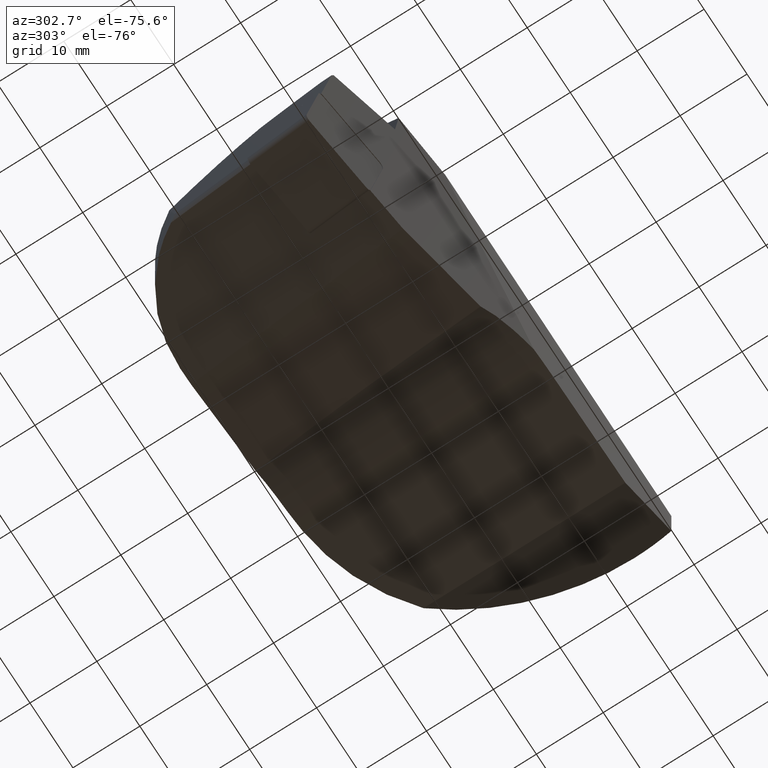
[diagram: clean part render]
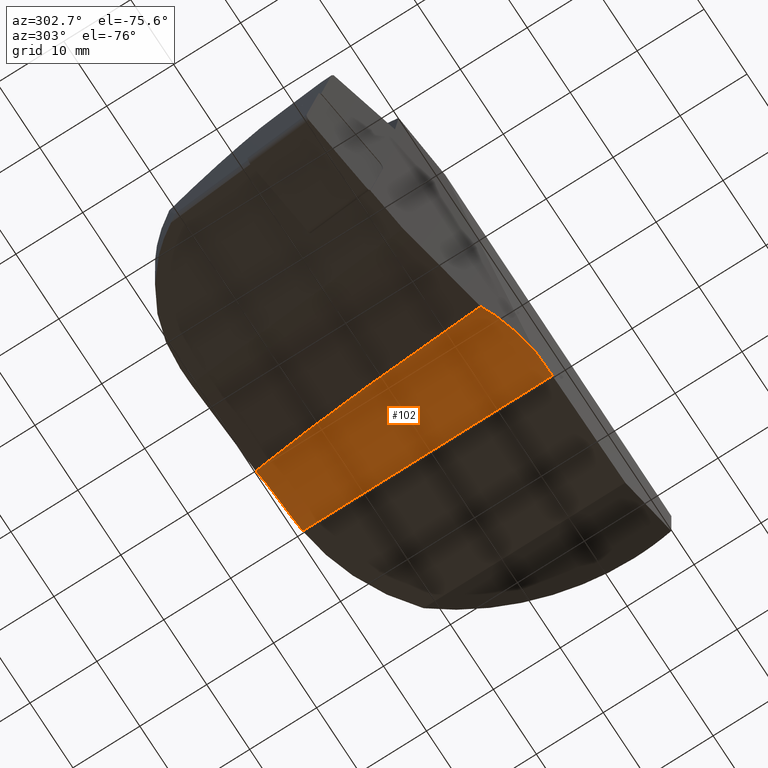
[diagram: same view with one face highlighted and labeled with its STEP entity id]
A machine part, auxiliary view. The second image highlights one B-rep face of the part: STEP entity #102.
In plain terms, the highlighted cylindrical surface (partial cylindrical patch) has radius 20 mm, axis along (-0, 1, 0).
Its self-contained STEP definition (entity closure, byte-faithful):
#102=ADVANCED_FACE('',(#162),#163,.F.);
#162=FACE_OUTER_BOUND('',#226,.T.);
#163=CYLINDRICAL_SURFACE('',#227,20.0);
#226=EDGE_LOOP('',(#468,#469,#470,#471,#472,#473));
#227=AXIS2_PLACEMENT_3D('',#474,#475,#476);
#468=ORIENTED_EDGE('',*,*,#557,.T.);
#469=ORIENTED_EDGE('',*,*,#566,.T.);
#470=ORIENTED_EDGE('',*,*,#580,.F.);
#471=ORIENTED_EDGE('',*,*,#588,.T.);
#472=ORIENTED_EDGE('',*,*,#589,.T.);
#473=ORIENTED_EDGE('',*,*,#551,.F.);
#474=CARTESIAN_POINT('',(5.00000000000002,24.0000194638791,-39.7));
#475=DIRECTION('',(-0.0,1.0,0.0));
#476=DIRECTION('',(-0.868821590504896,0.0,-0.495125280987089));
#551=EDGE_CURVE('',#669,#671,#672,.T.);
#557=EDGE_CURVE('',#669,#682,#683,.T.);
#566=EDGE_CURVE('',#682,#696,#698,.T.);
#580=EDGE_CURVE('',#720,#696,#722,.T.);
#588=EDGE_CURVE('',#720,#730,#731,.T.);
#589=EDGE_CURVE('',#730,#671,#732,.T.);
#669=VERTEX_POINT('',#847);
#671=VERTEX_POINT('',#850);
#672=ELLIPSE('',#851,20.1965514502461,20.0);
#682=VERTEX_POINT('',#863);
#683=ELLIPSE('',#864,340.037200618812,20.0);
#696=VERTEX_POINT('',#891);
#698=CIRCLE('',#894,20.0);
#720=VERTEX_POINT('',#957);
#722=B_SPLINE_CURVE_WITH_KNOTS('',3,(#959,#960,#961,#962,#963,#964,#965,#966),.UNSPECIFIED.,.F.,.F.,(4,2,2,4),(34.5192249948421,34.6865026905277,36.5950476753527,37.7222472083368),.UNSPECIFIED.);
#730=VERTEX_POINT('',#976);
#731=LINE('',#977,#978);
#732=CIRCLE('',#979,20.0);
#847=CARTESIAN_POINT('',(-10.8800368838606,-4.33390494508025,-27.5416930221668));
#850=CARTESIAN_POINT('',(-1.0267465691446,-5.99999999999997,-20.6296479898429));
#851=AXIS2_PLACEMENT_3D('',#1067,#1068,#1069);
#863=CARTESIAN_POINT('',(-7.40589612834773,31.5,-24.0126247812884));
#864=AXIS2_PLACEMENT_3D('',#1081,#1082,#1083);
#891=CARTESIAN_POINT('',(0.0,31.5,-20.3350832689629));
#894=AXIS2_PLACEMENT_3D('',#1093,#1094,#1095);
#957=CARTESIAN_POINT('',(3.2568851450468,31.3311777492001,-19.7761060381651));
#959=CARTESIAN_POINT('',(3.2568851450468,31.3311777492001,-19.7761060381651));
#960=CARTESIAN_POINT('',(3.2004619526019,31.3370429566552,-19.781042427864));
#961=CARTESIAN_POINT('',(3.1439961596822,31.3427585226833,-19.7862240671884));
#962=CARTESIAN_POINT('',(2.4428140565868,31.4118178551001,-19.8535835601211));
#963=CARTESIAN_POINT('',(1.79317133802311,31.4556032448885,-19.9477258721226));
#964=CARTESIAN_POINT('',(0.762483632227294,31.4930988420898,-20.1501772897238));
#965=CARTESIAN_POINT('',(0.380311468236002,31.5,-20.2368872701063));
#966=CARTESIAN_POINT('',(0.0,31.5,-20.3350832689629));
#976=CARTESIAN_POINT('',(3.2568851450468,-5.99999999999999,-19.7761060381651));
#977=CARTESIAN_POINT('',(3.2568851450468,31.3311777492001,-19.7761060381651));
#978=VECTOR('',#1132,37.3311777492001);
#979=AXIS2_PLACEMENT_3D('',#1133,#1134,#1135);
#1067=CARTESIAN_POINT('',(5.0,-4.70376070113638,-39.7));
#1068=DIRECTION('',(0.0984102433908716,0.990268068747763,0.0984102434420538));
#1069=DIRECTION('',(-0.700225266421961,0.139173100915999,-0.700225266786138));
#1081=CARTESIAN_POINT('',(5.00000000000002,-291.107467198126,-39.7));
#1082=DIRECTION('',(0.344928397059897,0.0588170940226637,-0.936784367051681));
#1083=DIRECTION('',(0.0203228693970094,-0.998268776157368,-0.0551944882098109));
#1093=CARTESIAN_POINT('',(5.0,31.5,-39.7));
#1094=DIRECTION('',(0.0,1.0,0.0));
#1095=DIRECTION('',(-1.0,0.0,0.0));
#1132=DIRECTION('',(0.0,-1.0,0.0));
#1133=CARTESIAN_POINT('',(5.0,-5.99999999999997,-39.7));
#1134=DIRECTION('',(0.0,-1.0,0.0));
#1135=DIRECTION('',(-1.0,0.0,0.0));